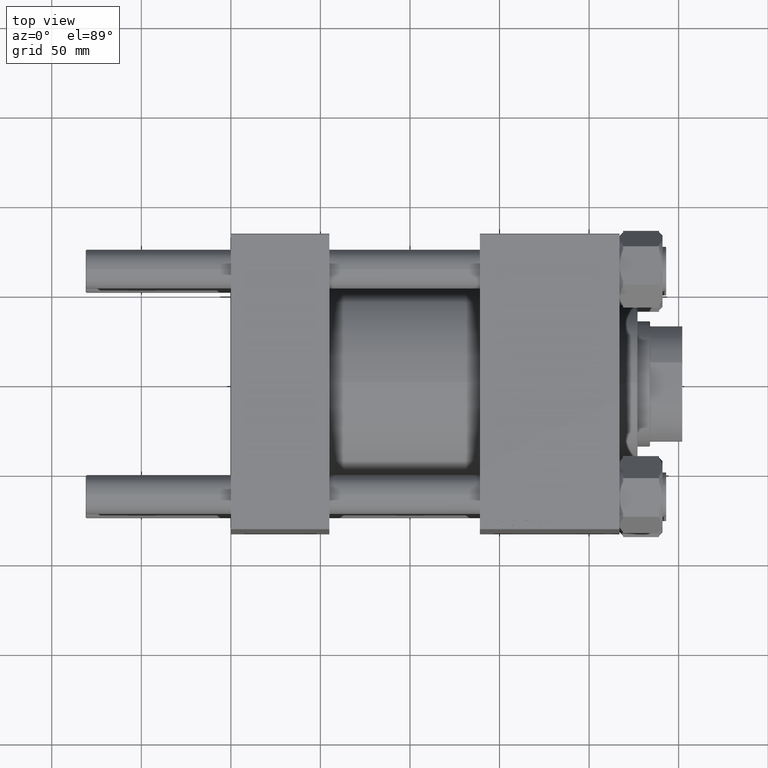
[diagram: clean part render]
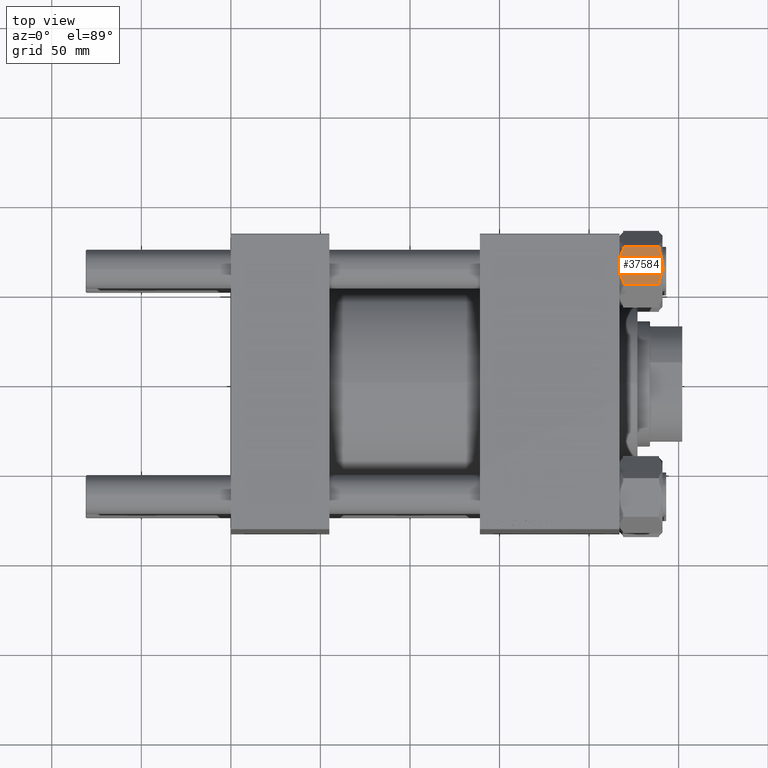
[diagram: same view with one face highlighted and labeled with its STEP entity id]
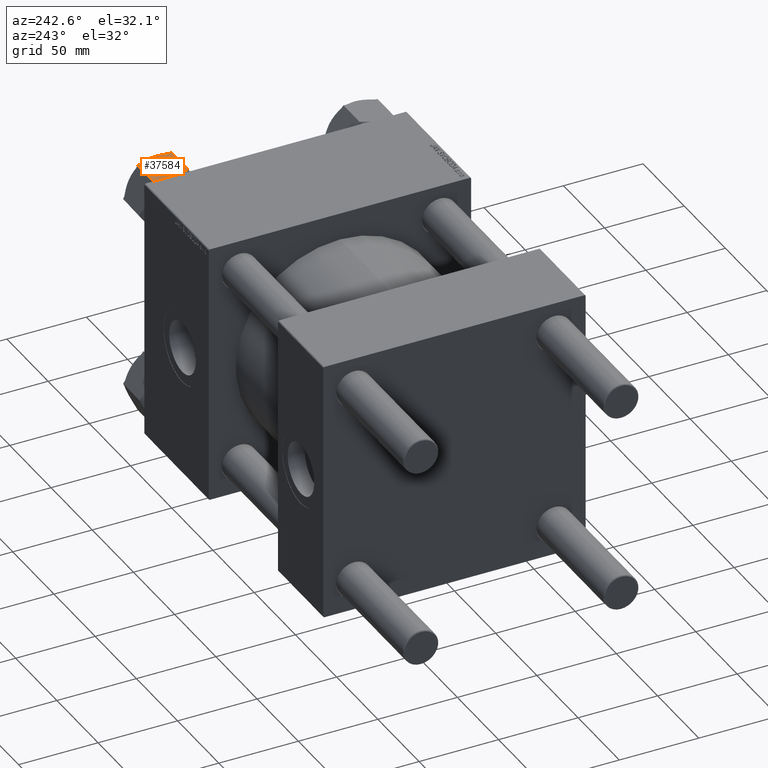
[diagram: same view with one face highlighted and labeled with its STEP entity id]
A machine part, top view. The second image highlights one B-rep face of the part: STEP entity #37584.
A second angle (auxiliary view) of the same face is appended — the face is thin or edge-on in the first view.
In plain terms, the highlighted planar face has unit normal (0, -0.097, -0.9953).
Its self-contained STEP definition (entity closure, byte-faithful):
#1100 = CARTESIAN_POINT ( 'NONE',  ( -21.62000000000000099, -1.258445848729200031E-15, -22.00000000000000000 ) ) ;
#2288 = ORIENTED_EDGE ( 'NONE', *, *, #47019, .F. ) ;
#2603 = EDGE_CURVE ( 'NONE', #25433, #36097, #38395, .T. ) ;
#2860 = CARTESIAN_POINT ( 'NONE',  ( -16.98598932500588177, 8.026341931906362248, -23.94054132287642034 ) ) ;
#2881 = CARTESIAN_POINT ( 'NONE',  ( -13.20154625327795550, 14.58118961049117068, -0.8936198542777936682 ) ) ;
#3101 = CARTESIAN_POINT ( 'NONE',  ( -17.17703765647818059, 7.695436515095081198, -23.90516550165009235 ) ) ;
#3599 = CARTESIAN_POINT ( 'NONE',  ( -17.74616263960891160, 6.709683128455897538, -23.76617792281660257 ) ) ;
#3768 = DIRECTION ( 'NONE',  ( -0.000000000000000000, -0.000000000000000000, 1.000000000000000000 ) ) ;
#4578 = DIRECTION ( 'NONE',  ( -0.4999999999999993894, -0.8660254037844389297, 0.000000000000000000 ) ) ;
#4806 = CARTESIAN_POINT ( 'NONE',  ( -21.62000000000000099, -1.258445848729200031E-15, -24.00000000000000000 ) ) ;
#5418 = VERTEX_POINT ( 'NONE', #33411 ) ;
#5714 = ORIENTED_EDGE ( 'NONE', *, *, #18479, .F. ) ;
#5802 = VERTEX_POINT ( 'NONE', #27952 ) ;
#5999 = VERTEX_POINT ( 'NONE', #19239 ) ;
#6838 = PLANE ( 'NONE',  #45515 ) ;
#7133 = CARTESIAN_POINT ( 'NONE',  ( -11.77388873931091950, 17.05396496048956934, -22.00000000000000000 ) ) ;
#7471 = EDGE_CURVE ( 'NONE', #32345, #25604, #34405, .T. ) ;
#7496 = B_SPLINE_CURVE_WITH_KNOTS ( 'NONE', 3,
 ( #37578, #41405, #22768, #18680, #3599, #3101, #2860, #26586, #18435, #23023 ),
 .UNSPECIFIED., .F., .F.,
 ( 4, 2, 2, 2, 4 ),
 ( 5.007809737505621918E-07, 0.004555175037830372364, 0.006832512166258683690, 0.007971180730472843257, 0.009109849294687001955 ),
 .UNSPECIFIED. ) ;
#9013 = CARTESIAN_POINT ( 'NONE',  ( -20.65611126068910863, 1.669504269329982415, -2.000000000000000000 ) ) ;
#9282 = CARTESIAN_POINT ( 'NONE',  ( -13.58342913161268228, 13.91974906267477685, -23.28765129395943134 ) ) ;
#9512 = EDGE_CURVE ( 'NONE', #5999, #25433, #7496, .T. ) ;
#9819 = VECTOR ( 'NONE', #12857, 1000.000000000000114 ) ;
#10225 = CARTESIAN_POINT ( 'NONE',  ( -21.62000000000000099, -1.258445848729200031E-15, -22.00000000000000000 ) ) ;
#10469 = LINE ( 'NONE', #11221, #22790 ) ;
#10558 = CARTESIAN_POINT ( 'NONE',  ( -15.44401067499413394, 10.69712729791319106, -0.05945867712357934265 ) ) ;
#11221 = CARTESIAN_POINT ( 'NONE',  ( -21.62000000000000099, -1.258445848729200031E-15, -2.000000000000001776 ) ) ;
#11472 = DIRECTION ( 'NONE',  ( -0.4999999999999993894, -0.8660254037844389297, 0.000000000000000000 ) ) ;
#11775 = VERTEX_POINT ( 'NONE', #22601 ) ;
#12857 = DIRECTION ( 'NONE',  ( 0.4999999999999993894, 0.8660254037844389297, 0.000000000000000000 ) ) ;
#13338 = CARTESIAN_POINT ( 'NONE',  ( -19.21365948880451313, 4.167904025701864690, -0.9250850388961038284 ) ) ;
#13893 = CARTESIAN_POINT ( 'NONE',  ( -12.48121638205399186, 15.82883754566064383, -1.393668941363782388 ) ) ;
#14604 = EDGE_CURVE ( 'NONE', #25604, #20015, #28546, .T. ) ;
#15031 = EDGE_CURVE ( 'NONE', #20015, #5802, #49142, .T. ) ;
#15388 = CARTESIAN_POINT ( 'NONE',  ( -10.81000000000001471, 18.72346922981956752, -2.000000000000001776 ) ) ;
#16131 = EDGE_CURVE ( 'NONE', #11775, #5418, #31096, .T. ) ;
#17194 = ORIENTED_EDGE ( 'NONE', *, *, #15031, .F. ) ;
#18212 = CARTESIAN_POINT ( 'NONE',  ( -15.82895367481209448, 10.03038646421051361, -0.01197337667083733966 ) ) ;
#18435 = CARTESIAN_POINT ( 'NONE',  ( -16.40715167818696685, 9.028918145530337114, -23.99999999999998579 ) ) ;
#18479 = EDGE_CURVE ( 'NONE', #5802, #29140, #50112, .T. ) ;
#18552 = DIRECTION ( 'NONE',  ( 0.4999999999999993894, 0.8660254037844389297, 0.000000000000000000 ) ) ;
#18680 = CARTESIAN_POINT ( 'NONE',  ( -18.12021770021052447, 6.061800758665620847, -23.62969313679642624 ) ) ;
#19239 = CARTESIAN_POINT ( 'NONE',  ( -20.65611126068910863, 1.669504269329982415, -22.00000000000000000 ) ) ;
#20015 = VERTEX_POINT ( 'NONE', #34350 ) ;
#21282 = CARTESIAN_POINT ( 'NONE',  ( -20.65611126068910863, 1.669504269329982415, -2.000000000000000000 ) ) ;
#21803 = CARTESIAN_POINT ( 'NONE',  ( -15.25296234352184044, 11.02803271472446767, -0.09483449834990487215 ) ) ;
#22024 = VECTOR ( 'NONE', #48988, 1000.000000000000114 ) ;
#22405 = CARTESIAN_POINT ( 'NONE',  ( -21.62000000000000099, -1.258445848729200031E-15, -24.00000000000000000 ) ) ;
#22523 = CARTESIAN_POINT ( 'NONE',  ( -11.77388873931091950, 17.05396496048956934, -22.00000000000000000 ) ) ;
#22601 = CARTESIAN_POINT ( 'NONE',  ( -21.62000000000000099, -1.258445848729200031E-15, -22.00000000000000000 ) ) ;
#22768 = CARTESIAN_POINT ( 'NONE',  ( -19.22845374672206376, 4.142279619328379958, -23.10638014572221266 ) ) ;
#22790 = VECTOR ( 'NONE', #11472, 1000.000000000000114 ) ;
#23023 = CARTESIAN_POINT ( 'NONE',  ( -16.21499999999999986, 9.361734614909769547, -24.00000000000000000 ) ) ;
#24841 = CARTESIAN_POINT ( 'NONE',  ( -13.21634051119551501, 14.55556520411769306, -23.07491496110389662 ) ) ;
#25024 = LINE ( 'NONE', #10225, #22024 ) ;
#25433 = VERTEX_POINT ( 'NONE', #45757 ) ;
#25604 = VERTEX_POINT ( 'NONE', #15388 ) ;
#25620 = CARTESIAN_POINT ( 'NONE',  ( -14.30978229978948590, 12.66166847115393423, -0.3703068632035738106 ) ) ;
#25842 = CARTESIAN_POINT ( 'NONE',  ( -12.12795923008836674, 16.44069688100218940, -22.30351413196914834 ) ) ;
#26586 = CARTESIAN_POINT ( 'NONE',  ( -16.60104632518793366, 8.693082765609041473, -23.98802662332916213 ) ) ;
#26609 = CARTESIAN_POINT ( 'NONE',  ( -16.21499999999999986, 9.361734614909769547, 0.000000000000000000 ) ) ;
#27952 = CARTESIAN_POINT ( 'NONE',  ( -16.21499999999999986, 9.361734614909769547, 0.000000000000000000 ) ) ;
#28546 = LINE ( 'NONE', #43636, #45057 ) ;
#29140 = VERTEX_POINT ( 'NONE', #21282 ) ;
#29394 = CARTESIAN_POINT ( 'NONE',  ( -20.30204076991166673, 2.282772348817364350, -1.696485868030862099 ) ) ;
#29693 = CARTESIAN_POINT ( 'NONE',  ( -11.77388873931091950, 17.05396496048956934, -2.000000000000000000 ) ) ;
#31048 = ORIENTED_EDGE ( 'NONE', *, *, #2603, .F. ) ;
#31096 = LINE ( 'NONE', #4806, #36134 ) ;
#32345 = VERTEX_POINT ( 'NONE', #40305 ) ;
#32481 = CARTESIAN_POINT ( 'NONE',  ( -16.21499999999999986, 9.361734614909769547, -24.00000000000000000 ) ) ;
#32719 = CARTESIAN_POINT ( 'NONE',  ( -18.84657086838733164, 4.803720167144772013, -0.7123487060405609972 ) ) ;
#32729 = VECTOR ( 'NONE', #3768, 1000.000000000000000 ) ;
#33411 = CARTESIAN_POINT ( 'NONE',  ( -21.62000000000000099, -1.258445848729200031E-15, -2.000000000000001776 ) ) ;
#34350 = CARTESIAN_POINT ( 'NONE',  ( -11.77388873931091950, 17.05396496048956934, -2.000000000000000000 ) ) ;
#34405 = LINE ( 'NONE', #49968, #32729 ) ;
#34721 = EDGE_LOOP ( 'NONE', ( #2288, #50474, #42064, #5714, #17194, #36088, #50126, #37505, #31048, #42933 ) ) ;
#36047 = CARTESIAN_POINT ( 'NONE',  ( -17.73599980468855009, 6.727285674886891442, -0.1908188403548049805 ) ) ;
#36074 = LINE ( 'NONE', #1100, #9819 ) ;
#36088 = ORIENTED_EDGE ( 'NONE', *, *, #14604, .F. ) ;
#36097 = VERTEX_POINT ( 'NONE', #7133 ) ;
#36134 = VECTOR ( 'NONE', #43097, 1000.000000000000000 ) ;
#36798 = CARTESIAN_POINT ( 'NONE',  ( -16.21499999999999986, 9.361734614909769547, 0.000000000000000000 ) ) ;
#36838 = EDGE_CURVE ( 'NONE', #29140, #5418, #10469, .T. ) ;
#37054 = CARTESIAN_POINT ( 'NONE',  ( -16.98310883762008316, 8.031331082409144173, -1.192622389734056928E-14 ) ) ;
#37505 = ORIENTED_EDGE ( 'NONE', *, *, #47936, .F. ) ;
#37578 = CARTESIAN_POINT ( 'NONE',  ( -20.65611126068910863, 1.669504269329982415, -22.00000000000000000 ) ) ;
#37584 = ADVANCED_FACE ( 'NONE', ( #41784 ), #6838, .F. ) ;
#37827 = CARTESIAN_POINT ( 'NONE',  ( -12.48753218109488117, 15.81789826083142714, -22.58212083167677875 ) ) ;
#37957 = DIRECTION ( 'NONE',  ( 0.8660254037844390407, -0.4999999999999994449, 0.000000000000000000 ) ) ;
#38395 = B_SPLINE_CURVE_WITH_KNOTS ( 'NONE', 3,
 ( #32481, #48037, #44232, #9282, #24841, #37827, #25842, #22523 ),
 .UNSPECIFIED., .F., .F.,
 ( 4, 2, 2, 4 ),
 ( 0.009109849294687001955, 0.01366157320126706355, 0.01593743515455708915, 0.01821329710784711994 ),
 .UNSPECIFIED. ) ;
#40305 = CARTESIAN_POINT ( 'NONE',  ( -10.81000000000001471, 18.72346922981956752, -22.00000000000000000 ) ) ;
#40374 = CARTESIAN_POINT ( 'NONE',  ( -19.94246781890514697, 2.905570968988132829, -1.417879168323227246 ) ) ;
#41405 = CARTESIAN_POINT ( 'NONE',  ( -19.94878361794604871, 2.894631684158908591, -22.60633105863622916 ) ) ;
#41784 = FACE_OUTER_BOUND ( 'NONE', #34721, .T. ) ;
#41927 = CARTESIAN_POINT ( 'NONE',  ( -16.02284832181305063, 9.694551084289212639, -1.220743883582897649E-14 ) ) ;
#42064 = ORIENTED_EDGE ( 'NONE', *, *, #36838, .F. ) ;
#42933 = ORIENTED_EDGE ( 'NONE', *, *, #9512, .F. ) ;
#43097 = DIRECTION ( 'NONE',  ( -0.000000000000000000, -0.000000000000000000, 1.000000000000000000 ) ) ;
#43636 = CARTESIAN_POINT ( 'NONE',  ( -21.62000000000000099, -1.258445848729200031E-15, -2.000000000000001776 ) ) ;
#44232 = CARTESIAN_POINT ( 'NONE',  ( -14.69400019531147983, 11.99618355493266186, -23.80918115964519188 ) ) ;
#45057 = VECTOR ( 'NONE', #4578, 1000.000000000000114 ) ;
#45515 = AXIS2_PLACEMENT_3D ( 'NONE', #22405, #37957, #18552 ) ;
#45757 = CARTESIAN_POINT ( 'NONE',  ( -16.21499999999999986, 9.361734614909769547, -24.00000000000000000 ) ) ;
#47019 = EDGE_CURVE ( 'NONE', #11775, #5999, #25024, .T. ) ;
#47936 = EDGE_CURVE ( 'NONE', #36097, #32345, #36074, .T. ) ;
#48037 = CARTESIAN_POINT ( 'NONE',  ( -15.44689116237994320, 10.69213814741041091, -23.99999999999998934 ) ) ;
#48988 = DIRECTION ( 'NONE',  ( 0.4999999999999993894, 0.8660254037844389297, 0.000000000000000000 ) ) ;
#49142 = B_SPLINE_CURVE_WITH_KNOTS ( 'NONE', 3,
 ( #29693, #13893, #2881, #25620, #49822, #21803, #10558, #18212, #41927, #26609 ),
 .UNSPECIFIED., .F., .F.,
 ( 4, 2, 2, 2, 4 ),
 ( 5.007809737490791430E-07, 0.004555175037830370630, 0.006832512166258681088, 0.007971180730472838052, 0.009109849294686995017 ),
 .UNSPECIFIED. ) ;
#49822 = CARTESIAN_POINT ( 'NONE',  ( -14.68383736039112009, 12.01378610136365310, -0.2338220771834072786 ) ) ;
#49968 = CARTESIAN_POINT ( 'NONE',  ( -10.81000000000001471, 18.72346922981956752, -24.00000000000000000 ) ) ;
#50112 = B_SPLINE_CURVE_WITH_KNOTS ( 'NONE', 3,
 ( #36798, #37054, #36047, #32719, #13338, #40374, #29394, #9013 ),
 .UNSPECIFIED., .F., .F.,
 ( 4, 2, 2, 4 ),
 ( 0.009109849294686995017, 0.01366157320126705661, 0.01593743515455708221, 0.01821329710784710953 ),
 .UNSPECIFIED. ) ;
#50126 = ORIENTED_EDGE ( 'NONE', *, *, #7471, .F. ) ;
#50474 = ORIENTED_EDGE ( 'NONE', *, *, #16131, .T. ) ;